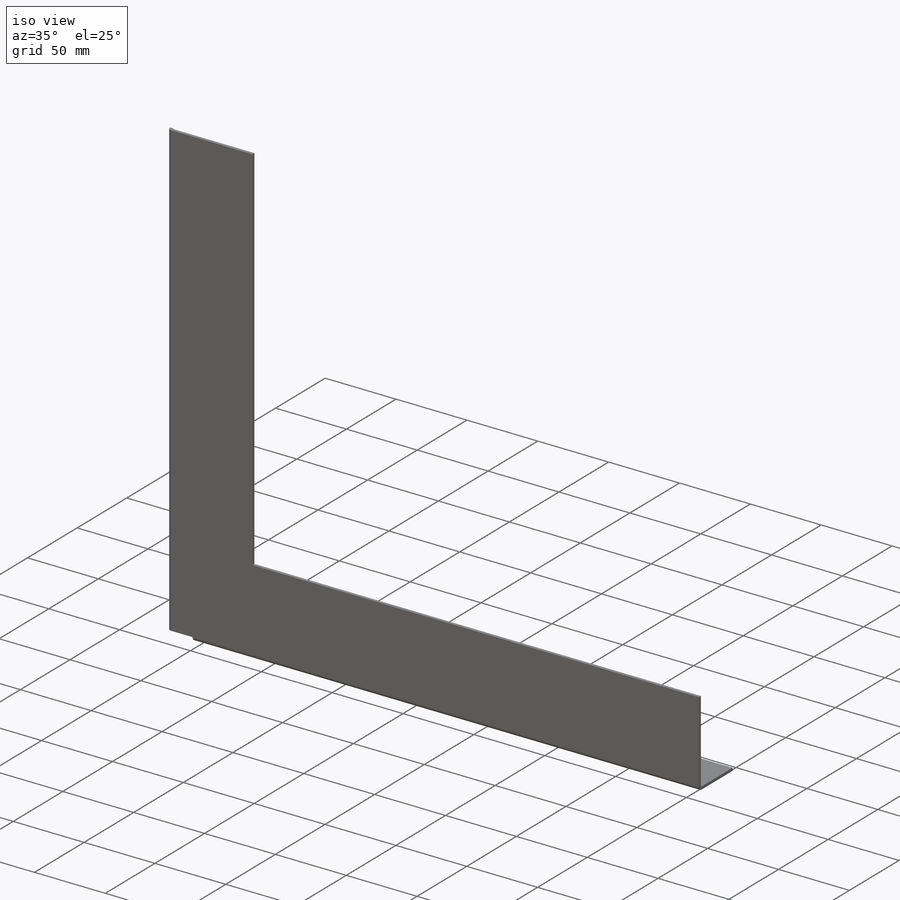
[diagram: iso view]
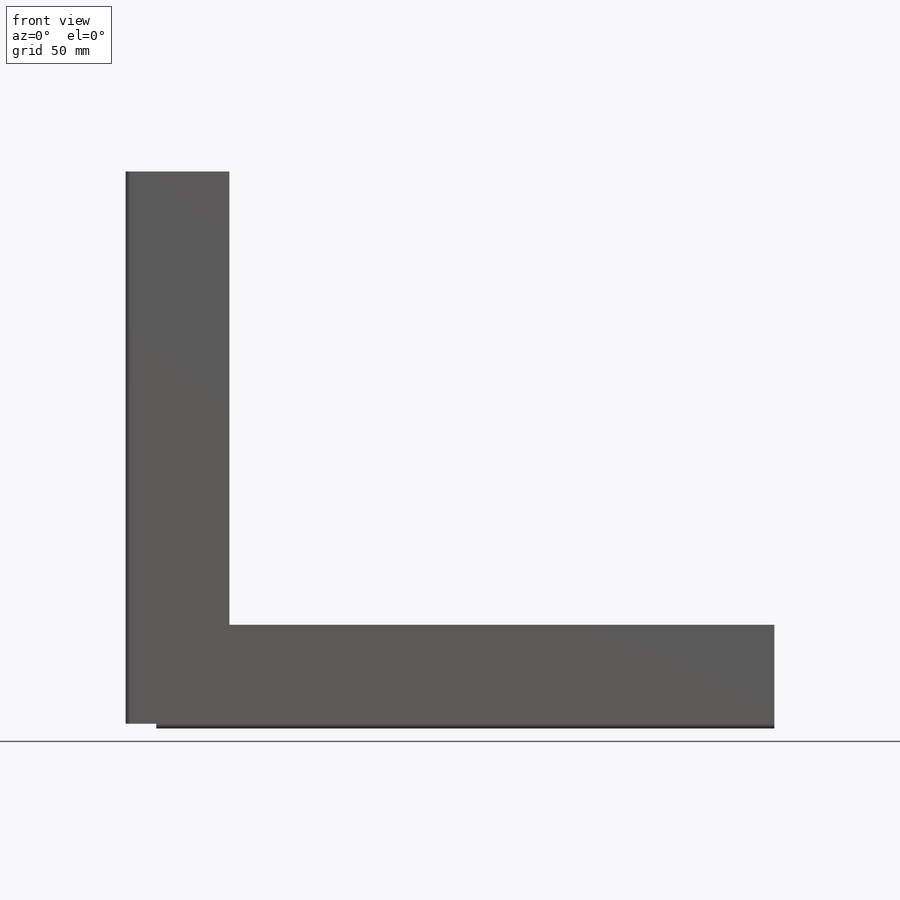
[diagram: front view]
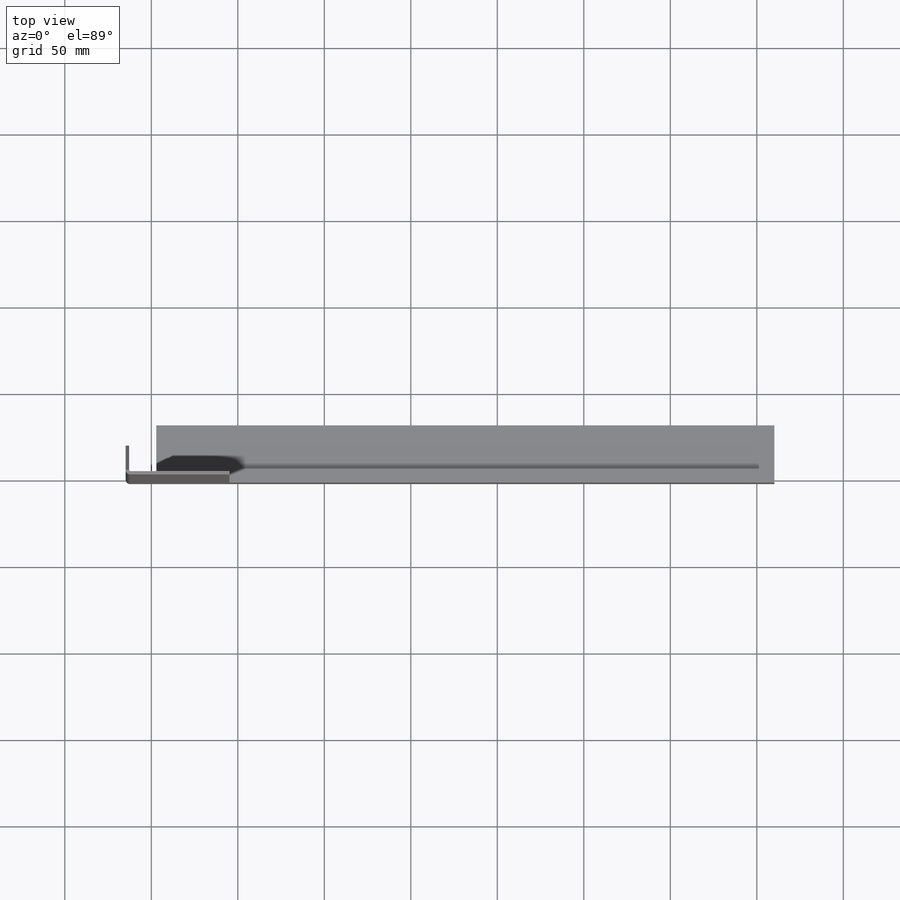
[diagram: top view]
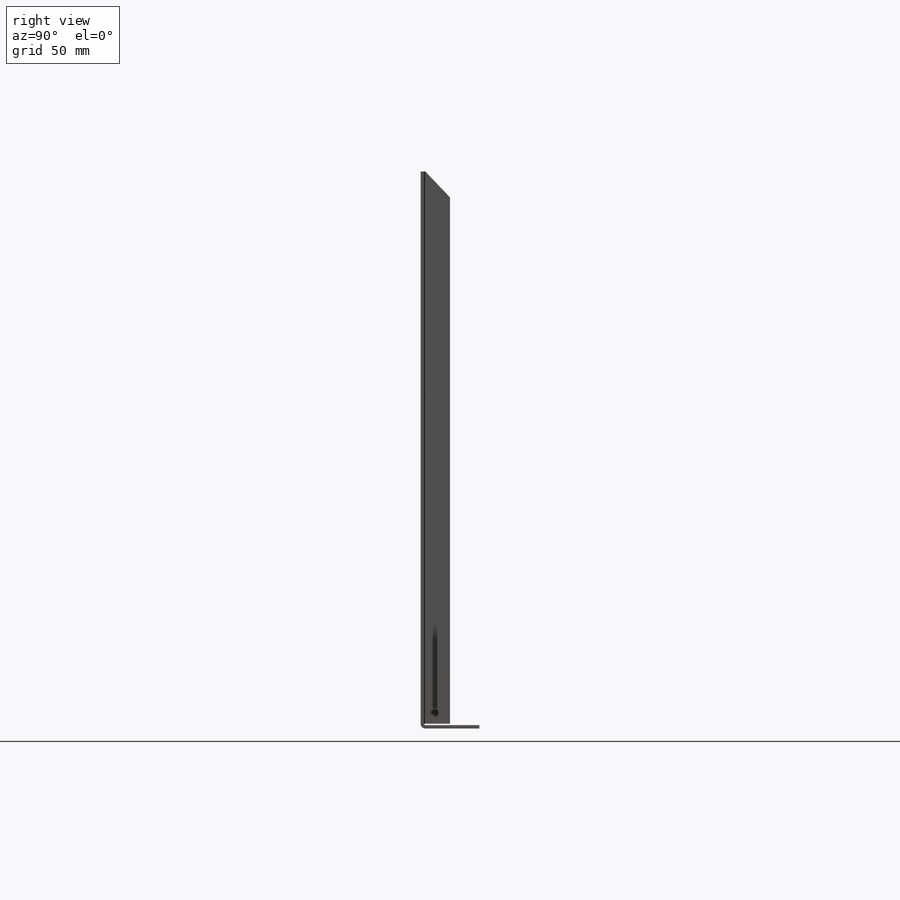
[diagram: right view]
SOLIDWORKS PART (.sldprt)
format: sldprt  version: not decoded by parser v0  size: 632,832 bytes
history: native  units: mm
features: sketch x25, cut_extrude x5, plane x3, sheet_metal_op x3, material x1 + 4 further entries (+12 scaffold rows collapsed; 1 parser-record rows omitted)
feature tree (54):
  scaffold x12  (default folders/planes/origin — collapsed)
  material  "Материал <не указан>"
  plane  "Спереди"
  plane  "Сверху"
  plane  "Справа"
  sketch  "Sketch1"  dims[c1.D1=~46.320573mm c2.D1=60.0mm c2.D2=322.0mm c2.D3=60.0mm c2.D4=400.0mm]
  sheet_metal_op  "Sheet-Metal1"  Thickness=2mm
  sheet_metal_op  "Base-Flange1"
  sketch  "Sketch7"  dims[c1.D1=0.7366mm c1.D4=90.0deg c1.D5=1.0 c1.D8=1.0mm c1.D9=1.0mm c2.D1=0.7366mm c2.D2=500.0mm c2.D3=0.0mm c2.D6=10.0mm c2.D7=15.0mm c2.Edge-Flange2=0.0]
  sketch  "Sketch10"
  sheet_metal_op  "EdgeBend2"
  sketch  "Sketch11"  dims[D1=25.0mm D2=31.26mm]
  cut_extrude  "Extrude1"  [1 undecoded]
  sketch  "Sketch12"  dims[D1=15.0mm]
  cut_extrude  "Extrude2"  Depth=2mm
  parser-record x1  (decoder bookkeeping rows leaked as tree rows — omitted from the tree; the rows remain in map.json)
  sketch  "Sketch11-1"  dims[D1=25.0mm D2=31.26mm]
  sketch  "Sketch12-1"  dims[D1=15.0mm]
  sketch  "Sketch11-2"  dims[D1=25.0mm D2=31.26mm]
  sketch  "Sketch12-2"  dims[D1=15.0mm]
  sketch  "Sketch11-3"  dims[D1=25.0mm D2=31.26mm]
  sketch  "Sketch12-3"  dims[D1=15.0mm]
  sketch  "Sketch15"
  cut_extrude  "Extrude3"  [1 undecoded]
  "Fold2"
  sketch  "Sketch11-4"  dims[D1=25.0mm D2=31.26mm]
  sketch  "Sketch12-4"  dims[D1=15.0mm]
  sketch  "Sketch18"  dims[D1=15.0mm]
  cut_extrude  "Extrude4"  Depth=2.74mm
  sketch  "Sketch19"
  cut_extrude  "Extrude5"  Depth=2.74mm
  sketch  "Sketch11-5"  dims[D1=25.0mm D2=31.26mm]
  sketch  "Sketch12-5"  dims[D1=15.0mm]
  sketch  "Sketch18-1"  dims[D1=15.0mm]
  sketch  "Sketch19-1"
  "Fold3"
  sketch  "Sketch11-6"  dims[D1=25.0mm D2=31.26mm]
  sketch  "Sketch12-6"  dims[D1=15.0mm]
  sketch  "Sketch18-2"  dims[D1=15.0mm]
  sketch  "Sketch19-2"
  "Flat-Pattern1"
  sketch  "Bend-Lines1"
  "Flatten-<EdgeBend2>1"
decode coverage: 23 of 33 modeling features carry decoded parameters; 4 rows unclassified (native names shown)
note: ~ marks probable driven/reference dimensions
note: 2 parameter values undecoded
note: suppression state not decoded; provenance and decode notes live in map.json
